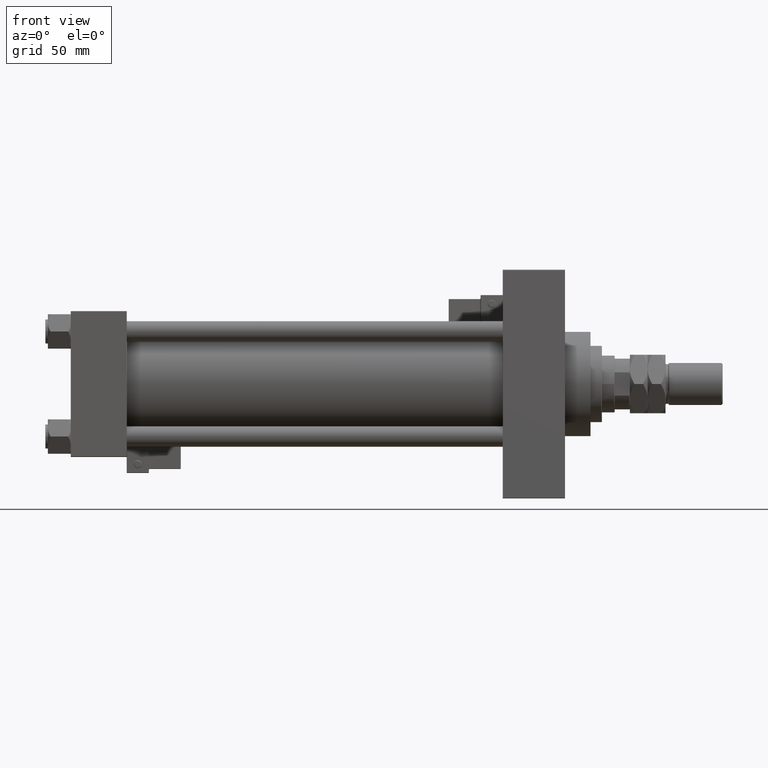
[diagram: clean part render]
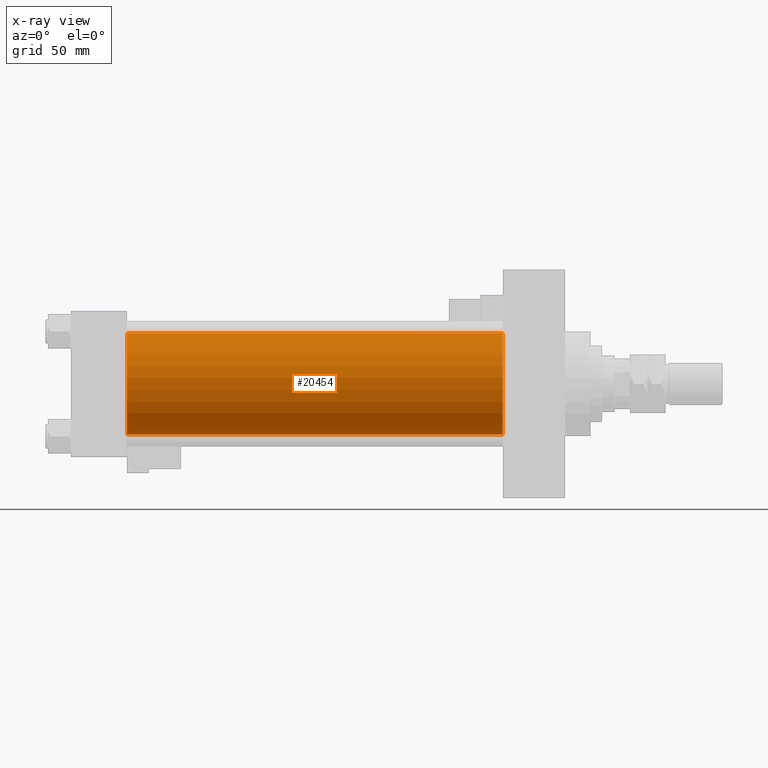
[diagram: x-ray — body ghosted, one internal face saturated and labeled with its STEP entity id]
A machine part, front view, then the same camera in x-ray: the body is ghosted and one INTERNAL B-rep face — a face not visible from any outside direction — is saturated and labeled: STEP entity #20454.
In plain terms, the highlighted cylindrical surface (partial cylindrical patch) has radius 40 mm, axis along (-1, -0, -0).
Its self-contained STEP definition (entity closure, byte-faithful):
#764 = CARTESIAN_POINT ( 'NONE',  ( 339.9999999999999432, -2.602085213965210642E-15, 40.00000000000000000 ) ) ;
#999 = VECTOR ( 'NONE', #19643, 1000.000000000000000 ) ;
#2667 = CARTESIAN_POINT ( 'NONE',  ( 44.00000000000000000, 2.296501982624201990E-15, -40.00000000000000000 ) ) ;
#3132 = LINE ( 'NONE', #48988, #999 ) ;
#4389 = CARTESIAN_POINT ( 'NONE',  ( 339.9999999999999432, 2.296501982624201990E-15, -40.00000000000000000 ) ) ;
#5859 = LINE ( 'NONE', #13202, #49610 ) ;
#7145 = EDGE_LOOP ( 'NONE', ( #40898, #17826, #48273, #43595 ) ) ;
#8835 = EDGE_CURVE ( 'NONE', #51519, #29832, #3132, .T. ) ;
#10700 = CARTESIAN_POINT ( 'NONE',  ( 339.9999999999999432, -2.602085213965210642E-15, 0.000000000000000000 ) ) ;
#10806 = VERTEX_POINT ( 'NONE', #2667 ) ;
#10915 = EDGE_CURVE ( 'NONE', #41665, #10806, #5859, .T. ) ;
#10938 = AXIS2_PLACEMENT_3D ( 'NONE', #10700, #38938, #18582 ) ;
#11770 = DIRECTION ( 'NONE',  ( 1.000000000000000000, 0.000000000000000000, 0.000000000000000000 ) ) ;
#13202 = CARTESIAN_POINT ( 'NONE',  ( 339.9999999999999432, 2.296501982624201990E-15, -40.00000000000000000 ) ) ;
#17826 = ORIENTED_EDGE ( 'NONE', *, *, #10915, .T. ) ;
#18582 = DIRECTION ( 'NONE',  ( 0.000000000000000000, 0.000000000000000000, -1.000000000000000000 ) ) ;
#19643 = DIRECTION ( 'NONE',  ( -1.000000000000000000, -0.000000000000000000, -0.000000000000000000 ) ) ;
#20454 = ADVANCED_FACE ( 'NONE', ( #43790 ), #51423, .F. ) ;
#22567 = AXIS2_PLACEMENT_3D ( 'NONE', #39183, #35887, #26950 ) ;
#24238 = DIRECTION ( 'NONE',  ( 0.000000000000000000, 0.000000000000000000, -1.000000000000000000 ) ) ;
#25622 = CARTESIAN_POINT ( 'NONE',  ( 44.00000000000000000, -2.602085213965210642E-15, 40.00000000000000000 ) ) ;
#25843 = EDGE_CURVE ( 'NONE', #29832, #10806, #42621, .T. ) ;
#26950 = DIRECTION ( 'NONE',  ( 0.000000000000000000, 0.000000000000000000, 1.000000000000000000 ) ) ;
#27398 = CIRCLE ( 'NONE', #10938, 40.00000000000000000 ) ;
#29832 = VERTEX_POINT ( 'NONE', #25622 ) ;
#30009 = DIRECTION ( 'NONE',  ( -1.000000000000000000, -0.000000000000000000, -0.000000000000000000 ) ) ;
#32643 = CARTESIAN_POINT ( 'NONE',  ( 44.00000000000000000, -2.602085213965210642E-15, 0.000000000000000000 ) ) ;
#33109 = AXIS2_PLACEMENT_3D ( 'NONE', #32643, #11770, #24238 ) ;
#35887 = DIRECTION ( 'NONE',  ( -1.000000000000000000, -0.000000000000000000, -0.000000000000000000 ) ) ;
#36983 = EDGE_CURVE ( 'NONE', #51519, #41665, #27398, .T. ) ;
#38938 = DIRECTION ( 'NONE',  ( 1.000000000000000000, 0.000000000000000000, 0.000000000000000000 ) ) ;
#39183 = CARTESIAN_POINT ( 'NONE',  ( 339.9999999999999432, -2.602085213965210642E-15, 0.000000000000000000 ) ) ;
#40898 = ORIENTED_EDGE ( 'NONE', *, *, #36983, .T. ) ;
#41665 = VERTEX_POINT ( 'NONE', #4389 ) ;
#42621 = CIRCLE ( 'NONE', #33109, 40.00000000000000000 ) ;
#43595 = ORIENTED_EDGE ( 'NONE', *, *, #8835, .F. ) ;
#43790 = FACE_OUTER_BOUND ( 'NONE', #7145, .T. ) ;
#48273 = ORIENTED_EDGE ( 'NONE', *, *, #25843, .F. ) ;
#48988 = CARTESIAN_POINT ( 'NONE',  ( 339.9999999999999432, -2.602085213965210642E-15, 40.00000000000000000 ) ) ;
#49610 = VECTOR ( 'NONE', #30009, 1000.000000000000000 ) ;
#51423 = CYLINDRICAL_SURFACE ( 'NONE', #22567, 40.00000000000000000 ) ;
#51519 = VERTEX_POINT ( 'NONE', #764 ) ;